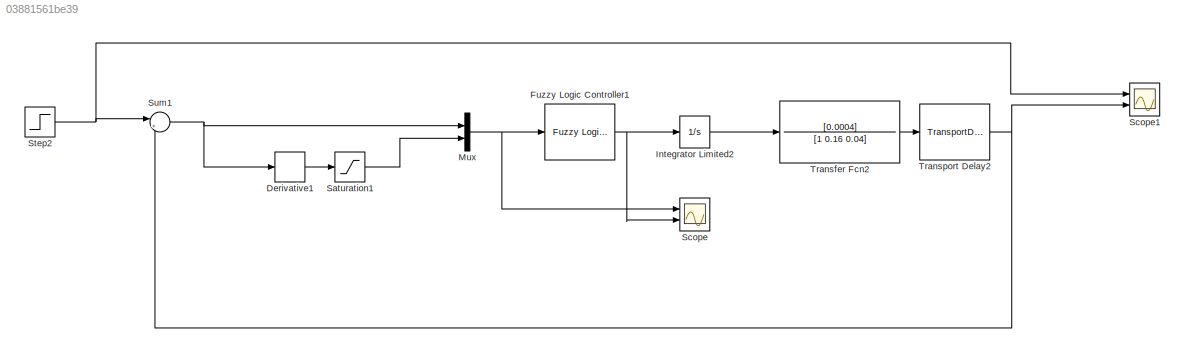
MODEL slx_03881561be39
KIND model
CONFIG AbsTol = auto
CONFIG EnableMultiTasking = off
CONFIG FixedStep = 0.1
CONFIG MaxStep = auto
CONFIG MinStep = auto
CONFIG RelTol = 1e-3
CONFIG SampleTimeConstraint = Unconstrained
CONFIG Solver = FixedStepAuto
CONFIG SolverName = FixedStepAuto
CONFIG StartTime = 0.0
CONFIG StopTime = 1000
BLOCK [Derivative] Derivative1
BLOCK [Reference] Fuzzy Logic Controller1  REF=fuzblock/Fuzzy Logic   (lib defined in mdl_858b3b3e7478)
Controller
  Ports = [1, 1]
  SourceBlock = fuzblock/Fuzzy Logic \nController
  SourceProductBaseCode = FL
  SourceProductName = Fuzzy Logic Toolbox
  SourceType = Fuzzy Inference System
BLOCK [Integrator] Integrator Limited2
  LimitOutput = on
  LowerSaturationLimit = -50
  Ports = [1, 1]
  UpperSaturationLimit = 50
BLOCK [Mux] Mux
  DisplayOption = bar
  Inputs = 2
  Ports = [2, 1]
BLOCK [Saturate] Saturation1
  InputPortMap = u0
  LowerLimit = -0.025
  Ports = [1, 1]
  UpperLimit = 0.025
BLOCK [Scope] Scope
  Floating = off
  NumInputPorts = 2
  Ports = [2]
  ScopeSpecificationString = Simulink.scopes.TimeScopeBlockCfg('CurrentConfiguration', extmgr.ConfigurationSet(extmgr.Configuration('Core','General UI',true),extmgr.Configuration('Core','Source UI',true),extmgr.Configuration('Sources','WiredSimulink',true,'DataLoggingVariableName','ScopeData1'),extmgr.Configuration('Visuals','Time Domain',true,'SerializedDisplays',{struct('MinYLimReal','-4.48412','MaxYLimReal','4.66988','YLab...<+1434ch>
BLOCK [Scope] Scope1
  Floating = off
  NumInputPorts = 2
  Ports = [2]
  ScopeSpecificationString = Simulink.scopes.TimeScopeBlockCfg('CurrentConfiguration', extmgr.ConfigurationSet(extmgr.Configuration('Core','General UI',true),extmgr.Configuration('Core','Source UI',true),extmgr.Configuration('Sources','WiredSimulink',true,'DataLoggingVariableName','ScopeData1'),extmgr.Configuration('Visuals','Time Domain',true,'SerializedDisplays',{struct('MinYLimReal','-0.70622','MaxYLimReal','0.65157','YLab...<+1577ch>
BLOCK [Step] Step2
  After = 0.4
  Before = -0.4
  SampleTime = 0
  Time = 500
BLOCK [Sum] Sum1
  IconShape = round
  InputSameDT = off
  Inputs = |+-
  OutDataTypeStr = Inherit: Inherit via internal rule
  Ports = [2, 1]
  SaturateOnIntegerOverflow = off
BLOCK [TransferFcn] Transfer Fcn2
  Denominator = [1 0.16 0.04]
  Numerator = [0.0004]
BLOCK [TransportDelay] Transport Delay2
  DelayTime = 2
  Ports = [1, 1]
LINE Derivative1:1 -> Saturation1:1
NET Fuzzy Logic Controller1:1 -> Integrator Limited2:1, Scope:2
LINE Integrator Limited2:1 -> Transfer Fcn2:1
NET Mux:1 -> Fuzzy Logic Controller1:1, Scope:1
LINE Saturation1:1 -> Mux:2
NET Step2:1 -> Scope1:1, Sum1:1
NET Sum1:1 -> Derivative1:1, Mux:1
LINE Transfer Fcn2:1 -> Transport Delay2:1
NET Transport Delay2:1 -> Scope1:2, Sum1:2
note: NET lines group one-source signal fan-out (src -> all destinations, sorted); 1:1 wires keep LINE
